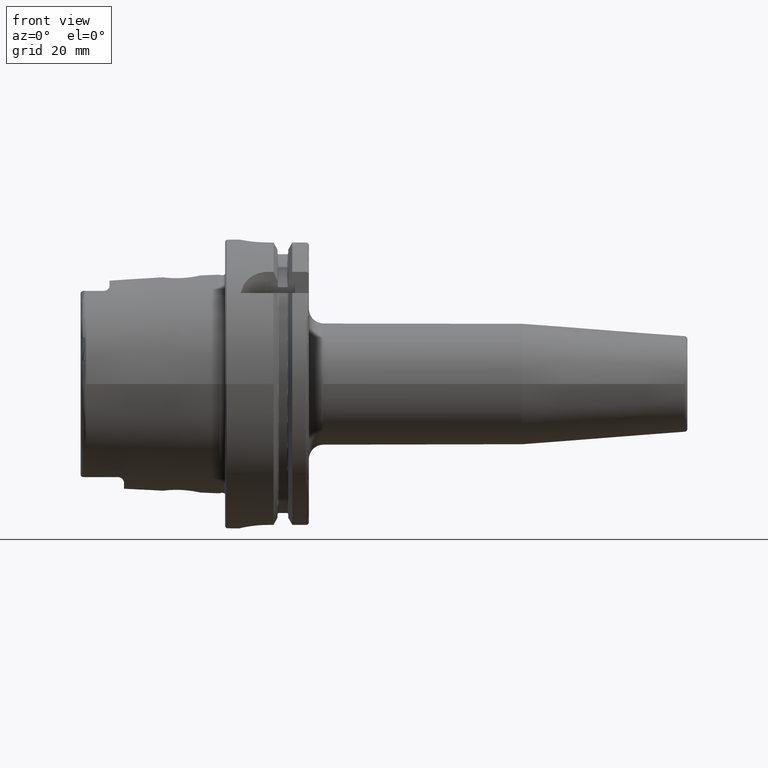
[diagram: clean part render]
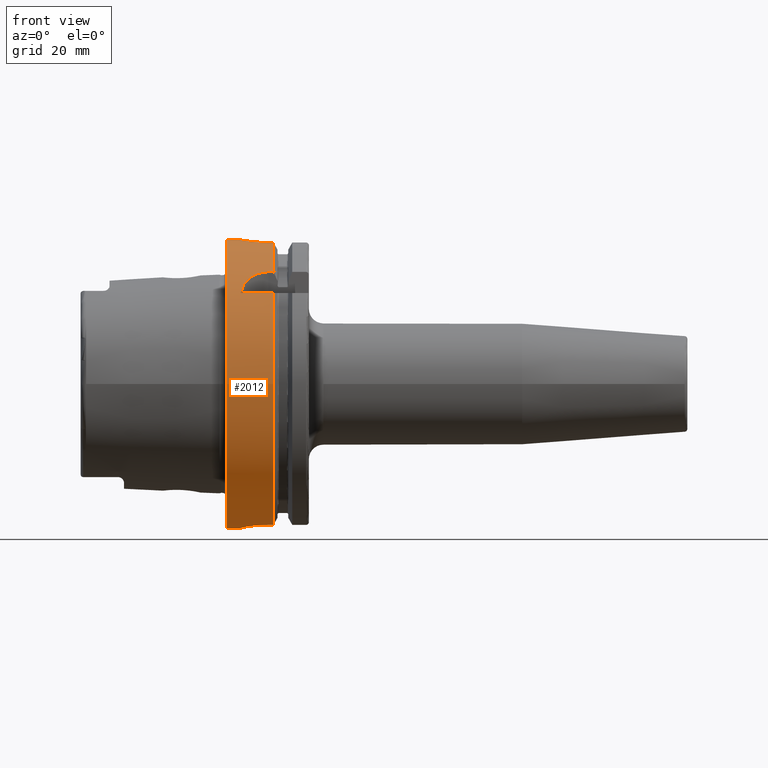
[diagram: same view with one face highlighted and labeled with its STEP entity id]
A machine part, front view. The second image highlights one B-rep face of the part: STEP entity #2012.
In plain terms, the highlighted cylindrical surface (bore or boss wall) has radius 50 mm, axis along (1, 0, 0).
Its self-contained STEP definition (entity closure, byte-faithful):
#56=B_SPLINE_CURVE_WITH_KNOTS('',3,(#3833,#3834,#3835,#3836,#3837,#3838,
#3839,#3840,#3841,#3842,#3843,#3844,#3845,#3846,#3847,#3848,#3849,#3850,
#3851,#3852,#3853,#3854,#3855,#3856,#3857,#3858),.UNSPECIFIED.,.F.,.F.,
(4,2,2,2,2,2,2,2,2,2,2,2,4),(0.,0.188478911015149,0.376957822030298,0.565436091508923,
0.753914360987547,0.942392630466172,1.1308708999448,1.31934981095995,1.50782872197509,
1.69630763299024,1.88478654400539,2.07326481348402,2.26174308296264),
 .UNSPECIFIED.);
#57=B_SPLINE_CURVE_WITH_KNOTS('',3,(#3859,#3860,#3861,#3862,#3863,#3864,
#3865,#3866,#3867,#3868),.UNSPECIFIED.,.F.,.F.,(4,2,2,2,4),(2.26174308296264,
2.45022135244127,2.63869962191989,2.82717853293504,3.01565744395019),
 .UNSPECIFIED.);
#58=B_SPLINE_CURVE_WITH_KNOTS('',3,(#3872,#3873,#3874,#3875,#3876,#3877,
#3878,#3879,#3880,#3881,#3882,#3883),.UNSPECIFIED.,.F.,.F.,(4,2,2,2,2,4),
(1.13213255574021,1.59216410027009,1.87572541272146,2.15928672517283,2.38471683342296,
2.61014694167308),.UNSPECIFIED.);
#65=B_SPLINE_CURVE_WITH_KNOTS('',3,(#3996,#3997,#3998,#3999,#4000,#4001,
#4002,#4003,#4004,#4005,#4006,#4007,#4008,#4009,#4010,#4011,#4012,#4013),
 .UNSPECIFIED.,.F.,.F.,(4,2,2,2,2,2,2,2,4),(0.,0.377795255890194,0.755590511780389,
1.13336459804459,1.51113868430879,1.88891277057299,2.26668685683718,2.64448211272738,
3.02227736861757),.UNSPECIFIED.);
#66=B_SPLINE_CURVE_WITH_KNOTS('',3,(#4021,#4022,#4023,#4024,#4025,#4026,
#4027,#4028,#4029,#4030),.UNSPECIFIED.,.F.,.F.,(4,2,2,2,4),(0.,0.377863193874929,
0.755726387749858,1.13417752669663,1.51262866564341),.UNSPECIFIED.);
#67=B_SPLINE_CURVE_WITH_KNOTS('',3,(#4034,#4035,#4036,#4037,#4038,#4039,
#4040,#4041,#4042,#4043),.UNSPECIFIED.,.F.,.F.,(4,2,2,2,4),(1.50996806152532,
1.8884192004721,2.26687033941887,2.6447335332938,3.02259672716873),
 .UNSPECIFIED.);
#93=FACE_BOUND('',#378,.T.);
#186=CYLINDRICAL_SURFACE('',#2216,50.);
#250=FACE_OUTER_BOUND('',#377,.T.);
#377=EDGE_LOOP('',(#1565,#1566,#1567,#1568,#1569,#1570,#1571,#1572,#1573,
#1574,#1575,#1576,#1577,#1578,#1579,#1580,#1581,#1582));
#378=EDGE_LOOP('',(#1583,#1584));
#504=LINE('',#3889,#611);
#510=LINE('',#3941,#617);
#515=LINE('',#3994,#622);
#516=LINE('',#4015,#623);
#517=LINE('',#4019,#624);
#518=LINE('',#4045,#625);
#519=LINE('',#4049,#626);
#611=VECTOR('',#2622,10.);
#617=VECTOR('',#2630,10.);
#622=VECTOR('',#2639,10.);
#623=VECTOR('',#2640,10.);
#624=VECTOR('',#2643,10.);
#625=VECTOR('',#2646,10.);
#626=VECTOR('',#2649,50.);
#727=CIRCLE('',#2217,50.);
#728=CIRCLE('',#2218,50.);
#729=CIRCLE('',#2219,50.);
#730=CIRCLE('',#2220,50.);
#731=CIRCLE('',#2221,50.);
#732=CIRCLE('',#2222,50.);
#903=VERTEX_POINT('',#3830);
#904=VERTEX_POINT('',#3832);
#905=VERTEX_POINT('',#3870);
#906=VERTEX_POINT('',#3871);
#908=VERTEX_POINT('',#3888);
#917=VERTEX_POINT('',#3940);
#926=VERTEX_POINT('',#3991);
#927=VERTEX_POINT('',#3993);
#928=VERTEX_POINT('',#3995);
#929=VERTEX_POINT('',#4014);
#930=VERTEX_POINT('',#4016);
#931=VERTEX_POINT('',#4018);
#932=VERTEX_POINT('',#4020);
#933=VERTEX_POINT('',#4031);
#934=VERTEX_POINT('',#4033);
#935=VERTEX_POINT('',#4044);
#936=VERTEX_POINT('',#4046);
#937=VERTEX_POINT('',#4048);
#1142=EDGE_CURVE('',#904,#903,#56,.T.);
#1143=EDGE_CURVE('',#903,#904,#57,.T.);
#1144=EDGE_CURVE('',#905,#906,#58,.T.);
#1147=EDGE_CURVE('',#906,#908,#504,.T.);
#1158=EDGE_CURVE('',#917,#905,#510,.T.);
#1168=EDGE_CURVE('',#926,#908,#727,.T.);
#1169=EDGE_CURVE('',#926,#927,#515,.T.);
#1170=EDGE_CURVE('',#927,#928,#65,.T.);
#1171=EDGE_CURVE('',#928,#929,#516,.T.);
#1172=EDGE_CURVE('',#930,#929,#728,.T.);
#1173=EDGE_CURVE('',#930,#931,#517,.T.);
#1174=EDGE_CURVE('',#931,#932,#66,.T.);
#1175=EDGE_CURVE('',#932,#933,#729,.T.);
#1176=EDGE_CURVE('',#933,#934,#67,.T.);
#1177=EDGE_CURVE('',#934,#935,#518,.T.);
#1178=EDGE_CURVE('',#936,#935,#730,.T.);
#1179=EDGE_CURVE('',#936,#937,#519,.T.);
#1180=EDGE_CURVE('',#937,#937,#731,.T.);
#1181=EDGE_CURVE('',#917,#936,#732,.T.);
#1565=ORIENTED_EDGE('',*,*,#1158,.T.);
#1566=ORIENTED_EDGE('',*,*,#1144,.T.);
#1567=ORIENTED_EDGE('',*,*,#1147,.T.);
#1568=ORIENTED_EDGE('',*,*,#1168,.F.);
#1569=ORIENTED_EDGE('',*,*,#1169,.T.);
#1570=ORIENTED_EDGE('',*,*,#1170,.T.);
#1571=ORIENTED_EDGE('',*,*,#1171,.T.);
#1572=ORIENTED_EDGE('',*,*,#1172,.F.);
#1573=ORIENTED_EDGE('',*,*,#1173,.T.);
#1574=ORIENTED_EDGE('',*,*,#1174,.T.);
#1575=ORIENTED_EDGE('',*,*,#1175,.T.);
#1576=ORIENTED_EDGE('',*,*,#1176,.T.);
#1577=ORIENTED_EDGE('',*,*,#1177,.T.);
#1578=ORIENTED_EDGE('',*,*,#1178,.F.);
#1579=ORIENTED_EDGE('',*,*,#1179,.T.);
#1580=ORIENTED_EDGE('',*,*,#1180,.T.);
#1581=ORIENTED_EDGE('',*,*,#1179,.F.);
#1582=ORIENTED_EDGE('',*,*,#1181,.F.);
#1583=ORIENTED_EDGE('',*,*,#1142,.T.);
#1584=ORIENTED_EDGE('',*,*,#1143,.T.);
#2012=ADVANCED_FACE('',(#250,#93),#186,.T.);
#2216=AXIS2_PLACEMENT_3D('',#3990,#2635,#2636);
#2217=AXIS2_PLACEMENT_3D('',#3992,#2637,#2638);
#2218=AXIS2_PLACEMENT_3D('',#4017,#2641,#2642);
#2219=AXIS2_PLACEMENT_3D('',#4032,#2644,#2645);
#2220=AXIS2_PLACEMENT_3D('',#4047,#2647,#2648);
#2221=AXIS2_PLACEMENT_3D('',#4050,#2650,#2651);
#2222=AXIS2_PLACEMENT_3D('',#4051,#2652,#2653);
#2622=DIRECTION('',(1.,0.,0.));
#2630=DIRECTION('',(-1.,0.,0.));
#2635=DIRECTION('center_axis',(1.,0.,0.));
#2636=DIRECTION('ref_axis',(0.,1.,0.));
#2637=DIRECTION('center_axis',(1.,0.,0.));
#2638=DIRECTION('ref_axis',(0.,0.,-1.));
#2639=DIRECTION('',(-1.,0.,0.));
#2640=DIRECTION('',(1.,0.,0.));
#2641=DIRECTION('center_axis',(1.,0.,0.));
#2642=DIRECTION('ref_axis',(0.,0.,-1.));
#2643=DIRECTION('',(-1.,0.,0.));
#2644=DIRECTION('center_axis',(-1.,0.,0.));
#2645=DIRECTION('ref_axis',(0.,1.,0.));
#2646=DIRECTION('',(1.,0.,0.));
#2647=DIRECTION('center_axis',(1.,0.,0.));
#2648=DIRECTION('ref_axis',(0.,0.,-1.));
#2649=DIRECTION('',(-1.,0.,0.));
#2650=DIRECTION('center_axis',(1.,0.,0.));
#2651=DIRECTION('ref_axis',(0.,0.,-1.));
#2652=DIRECTION('center_axis',(1.,0.,0.));
#2653=DIRECTION('ref_axis',(0.,0.,-1.));
#3830=CARTESIAN_POINT('',(12.,50.,-6.12323399573677E-16));
#3832=CARTESIAN_POINT('',(6.99999999999999,49.749371855331,5.));
#3833=CARTESIAN_POINT('Ctrl Pts',(6.99999999999999,49.749371855331,5.));
#3834=CARTESIAN_POINT('Ctrl Pts',(6.37173696328283,49.749371855331,5.));
#3835=CARTESIAN_POINT('Ctrl Pts',(5.70188570880885,49.7624993987098,4.87435544587055));
#3836=CARTESIAN_POINT('Ctrl Pts',(4.4701142477173,49.8098541153698,4.36395693611591));
#3837=CARTESIAN_POINT('Ctrl Pts',(3.90815809537484,49.8433908660961,3.97922590724033));
#3838=CARTESIAN_POINT('Ctrl Pts',(3.02077560297968,49.9062957431473,3.09184341484517));
#3839=CARTESIAN_POINT('Ctrl Pts',(2.63604339567929,49.9397591808605,2.52988660036719));
#3840=CARTESIAN_POINT('Ctrl Pts',(2.12564400622109,49.9869460568296,1.29811292154946));
#3841=CARTESIAN_POINT('Ctrl Pts',(1.99999999999999,50.,0.628260898262081));
#3842=CARTESIAN_POINT('Ctrl Pts',(1.99999999999999,50.,-0.628260898262082));
#3843=CARTESIAN_POINT('Ctrl Pts',(2.12564400622109,49.9869460568296,-1.29811292154946));
#3844=CARTESIAN_POINT('Ctrl Pts',(2.63604339567929,49.9397591808605,-2.52988660036719));
#3845=CARTESIAN_POINT('Ctrl Pts',(3.02077560297968,49.9062957431473,-3.09184341484517));
#3846=CARTESIAN_POINT('Ctrl Pts',(3.90815809537484,49.8433908660961,-3.97922590724033));
#3847=CARTESIAN_POINT('Ctrl Pts',(4.4701142477173,49.8098541153698,-4.36395693611591));
#3848=CARTESIAN_POINT('Ctrl Pts',(5.70188570880885,49.7624993987098,-4.87435544587055));
#3849=CARTESIAN_POINT('Ctrl Pts',(6.37173696328283,49.749371855331,-5.));
#3850=CARTESIAN_POINT('Ctrl Pts',(7.62826303671716,49.749371855331,-5.));
#3851=CARTESIAN_POINT('Ctrl Pts',(8.29811429119113,49.7624993987098,-4.87435544587055));
#3852=CARTESIAN_POINT('Ctrl Pts',(9.52988575228269,49.8098541153698,-4.36395693611591));
#3853=CARTESIAN_POINT('Ctrl Pts',(10.0918419046251,49.8433908660961,-3.97922590724033));
#3854=CARTESIAN_POINT('Ctrl Pts',(10.9792243970203,49.9062957431473,-3.09184341484517));
#3855=CARTESIAN_POINT('Ctrl Pts',(11.3639566043207,49.9397591808605,-2.52988660036719));
#3856=CARTESIAN_POINT('Ctrl Pts',(11.8743559937789,49.9869460568296,-1.29811292154947));
#3857=CARTESIAN_POINT('Ctrl Pts',(12.,50.,-0.628260898262083));
#3858=CARTESIAN_POINT('Ctrl Pts',(12.,50.,-5.55111512312578E-16));
#3859=CARTESIAN_POINT('Ctrl Pts',(12.,50.,-5.55111512312578E-16));
#3860=CARTESIAN_POINT('Ctrl Pts',(12.,50.,0.628260898262082));
#3861=CARTESIAN_POINT('Ctrl Pts',(11.8743559937789,49.9869460568296,1.29811292154946));
#3862=CARTESIAN_POINT('Ctrl Pts',(11.3639566043207,49.9397591808605,2.52988660036719));
#3863=CARTESIAN_POINT('Ctrl Pts',(10.9792243970203,49.9062957431473,3.09184341484517));
#3864=CARTESIAN_POINT('Ctrl Pts',(10.0918419046251,49.8433908660961,3.97922590724033));
#3865=CARTESIAN_POINT('Ctrl Pts',(9.52988575228269,49.8098541153698,4.36395693611591));
#3866=CARTESIAN_POINT('Ctrl Pts',(8.29811429119113,49.7624993987098,4.87435544587055));
#3867=CARTESIAN_POINT('Ctrl Pts',(7.62826303671716,49.749371855331,5.));
#3868=CARTESIAN_POINT('Ctrl Pts',(6.99999999999999,49.749371855331,5.));
#3870=CARTESIAN_POINT('',(5.36310214079494,-38.8297566307078,31.5));
#3871=CARTESIAN_POINT('',(15.,-31.5,38.8297566307078));
#3872=CARTESIAN_POINT('Ctrl Pts',(5.36310214079494,-38.8297566307078,31.5));
#3873=CARTESIAN_POINT('Ctrl Pts',(5.63795050776221,-37.8378299510303,32.722738779917));
#3874=CARTESIAN_POINT('Ctrl Pts',(6.08245260240086,-36.8264130955983,33.8486741193789));
#3875=CARTESIAN_POINT('Ctrl Pts',(7.14730321206235,-35.2667182945212,35.4540138707062));
#3876=CARTESIAN_POINT('Ctrl Pts',(7.68113760815893,-34.6306580359392,36.0741351437033));
#3877=CARTESIAN_POINT('Ctrl Pts',(8.97436758466638,-33.4722127660808,37.1515365058173));
#3878=CARTESIAN_POINT('Ctrl Pts',(9.73574998094174,-32.9521170857844,37.6088911783762));
#3879=CARTESIAN_POINT('Ctrl Pts',(11.1521999725134,-32.2432973482077,38.2170233500259));
#3880=CARTESIAN_POINT('Ctrl Pts',(11.8888981504148,-31.9629772872452,38.4503075998006));
#3881=CARTESIAN_POINT('Ctrl Pts',(13.4369856471743,-31.5908755949743,38.7566077888176));
#3882=CARTESIAN_POINT('Ctrl Pts',(14.2485663058329,-31.5,38.8297566307078));
#3883=CARTESIAN_POINT('Ctrl Pts',(15.,-31.5,38.8297566307078));
#3888=CARTESIAN_POINT('',(16.7379709790786,-31.5,38.8297566307078));
#3889=CARTESIAN_POINT('',(8.61898548953931,-31.5,38.8297566307078));
#3940=CARTESIAN_POINT('',(16.7379709790786,-38.8297566307078,31.5));
#3941=CARTESIAN_POINT('',(8.61898548953931,-38.8297566307078,31.5));
#3990=CARTESIAN_POINT('Origin',(8.61898548953931,0.,0.));
#3991=CARTESIAN_POINT('',(16.7379709790786,-10.,48.9897948556636));
#3992=CARTESIAN_POINT('Origin',(16.7379709790786,0.,0.));
#3993=CARTESIAN_POINT('',(15.,-10.,48.9897948556636));
#3994=CARTESIAN_POINT('',(8.61898548953931,-10.,48.9897948556636));
#3995=CARTESIAN_POINT('',(15.,10.,48.9897948556636));
#3996=CARTESIAN_POINT('Ctrl Pts',(15.,-10.,48.9897948556636));
#3997=CARTESIAN_POINT('Ctrl Pts',(13.740682480366,-10.,48.9897948556636));
#3998=CARTESIAN_POINT('Ctrl Pts',(12.3998222283811,-9.74762796248614,49.0433876618447));
#3999=CARTESIAN_POINT('Ctrl Pts',(9.93707994969945,-8.72605417648382,49.2354150792771));
#4000=CARTESIAN_POINT('Ctrl Pts',(8.81489539818993,-7.95703102192089,49.3709085101933));
#4001=CARTESIAN_POINT('Ctrl Pts',(7.04301862271998,-6.18515424645094,49.6240337638318));
#4002=CARTESIAN_POINT('Ctrl Pts',(6.27395658455242,-5.06294861197626,49.7583347151863));
#4003=CARTESIAN_POINT('Ctrl Pts',(5.25235457764165,-2.60013306081865,49.9476188647081));
#4004=CARTESIAN_POINT('Ctrl Pts',(4.99999999999999,-1.259246954214,50.));
#4005=CARTESIAN_POINT('Ctrl Pts',(4.99999999999999,1.259246954214,50.));
#4006=CARTESIAN_POINT('Ctrl Pts',(5.25235457764165,2.60013306081865,49.9476188647081));
#4007=CARTESIAN_POINT('Ctrl Pts',(6.27395658455242,5.06294861197626,49.7583347151863));
#4008=CARTESIAN_POINT('Ctrl Pts',(7.04301862271998,6.18515424645094,49.6240337638318));
#4009=CARTESIAN_POINT('Ctrl Pts',(8.81489539818993,7.95703102192089,49.3709085101933));
#4010=CARTESIAN_POINT('Ctrl Pts',(9.93707994969945,8.72605417648382,49.2354150792771));
#4011=CARTESIAN_POINT('Ctrl Pts',(12.3998222283811,9.74762796248614,49.0433876618447));
#4012=CARTESIAN_POINT('Ctrl Pts',(13.740682480366,10.,48.9897948556636));
#4013=CARTESIAN_POINT('Ctrl Pts',(15.,10.,48.9897948556636));
#4014=CARTESIAN_POINT('',(16.7379709790786,10.,48.9897948556636));
#4015=CARTESIAN_POINT('',(8.61898548953931,10.,48.9897948556636));
#4016=CARTESIAN_POINT('',(16.7379709790786,11.,-48.7749935930288));
#4017=CARTESIAN_POINT('Origin',(16.7379709790786,0.,0.));
#4018=CARTESIAN_POINT('',(15.,11.,-48.7749935930288));
#4019=CARTESIAN_POINT('',(8.61898548953931,11.,-48.7749935930288));
#4020=CARTESIAN_POINT('',(4.99999999999999,0.999999999999997,-49.9899989998));
#4021=CARTESIAN_POINT('Ctrl Pts',(15.,11.,-48.7749935930288));
#4022=CARTESIAN_POINT('Ctrl Pts',(13.7404560204169,11.,-48.7749935930288));
#4023=CARTESIAN_POINT('Ctrl Pts',(12.3998213084084,10.7475295248871,-48.8340306344483));
#4024=CARTESIAN_POINT('Ctrl Pts',(9.9383361278342,9.72667325975831,-49.0475663096823));
#4025=CARTESIAN_POINT('Ctrl Pts',(8.81713821454868,8.95850056252305,-49.1990678796225));
#4026=CARTESIAN_POINT('Ctrl Pts',(7.04551978193545,7.18842719108522,-49.4887060645896));
#4027=CARTESIAN_POINT('Ctrl Pts',(6.27594389465425,6.06650925178,-49.6460359942126));
#4028=CARTESIAN_POINT('Ctrl Pts',(5.25307325920197,3.60309260864685,-49.8853600567865));
#4029=CARTESIAN_POINT('Ctrl Pts',(4.99999999999999,2.26125147049483,-49.9647689238702));
#4030=CARTESIAN_POINT('Ctrl Pts',(4.99999999999999,1.,-49.9899989998));
#4031=CARTESIAN_POINT('',(4.99999999999999,-1.00000000000001,-49.9899989998));
#4032=CARTESIAN_POINT('Origin',(4.99999999999999,0.,0.));
#4033=CARTESIAN_POINT('',(15.,-11.,-48.7749935930288));
#4034=CARTESIAN_POINT('Ctrl Pts',(4.99999999999999,-1.,-49.9899989998));
#4035=CARTESIAN_POINT('Ctrl Pts',(4.99999999999999,-2.26125147049483,-49.9647689238702));
#4036=CARTESIAN_POINT('Ctrl Pts',(5.25307325920197,-3.60309260864686,-49.8853600567865));
#4037=CARTESIAN_POINT('Ctrl Pts',(6.27594389465425,-6.06650925178001,-49.6460359942126));
#4038=CARTESIAN_POINT('Ctrl Pts',(7.04551978193545,-7.18842719108522,-49.4887060645896));
#4039=CARTESIAN_POINT('Ctrl Pts',(8.81713821454868,-8.95850056252306,-49.1990678796225));
#4040=CARTESIAN_POINT('Ctrl Pts',(9.9383361278342,-9.72667325975831,-49.0475663096823));
#4041=CARTESIAN_POINT('Ctrl Pts',(12.3998213084084,-10.7475295248871,-48.8340306344483));
#4042=CARTESIAN_POINT('Ctrl Pts',(13.7404560204169,-11.,-48.7749935930288));
#4043=CARTESIAN_POINT('Ctrl Pts',(15.,-11.,-48.7749935930288));
#4044=CARTESIAN_POINT('',(16.7379709790786,-11.,-48.7749935930288));
#4045=CARTESIAN_POINT('',(8.61898548953931,-11.,-48.7749935930288));
#4046=CARTESIAN_POINT('',(16.7379709790786,-50.,-6.12323399573677E-15));
#4047=CARTESIAN_POINT('Origin',(16.7379709790786,0.,0.));
#4048=CARTESIAN_POINT('',(0.5,-50.,-6.12323399573677E-15));
#4049=CARTESIAN_POINT('',(8.61898548953931,-50.,-6.12323399573677E-15));
#4050=CARTESIAN_POINT('Origin',(0.5,0.,0.));
#4051=CARTESIAN_POINT('Origin',(16.7379709790786,0.,0.));